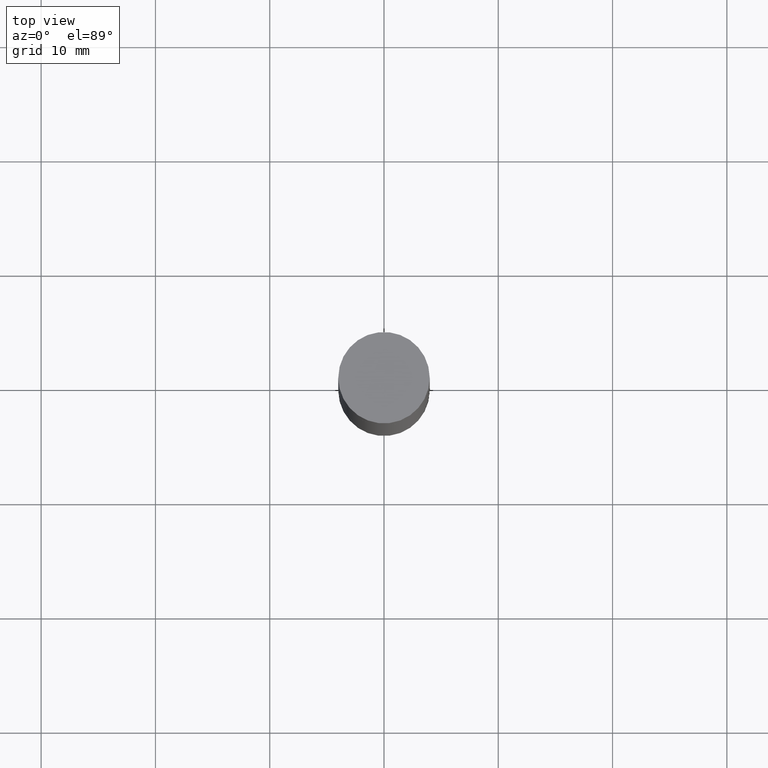
[diagram: clean part render]
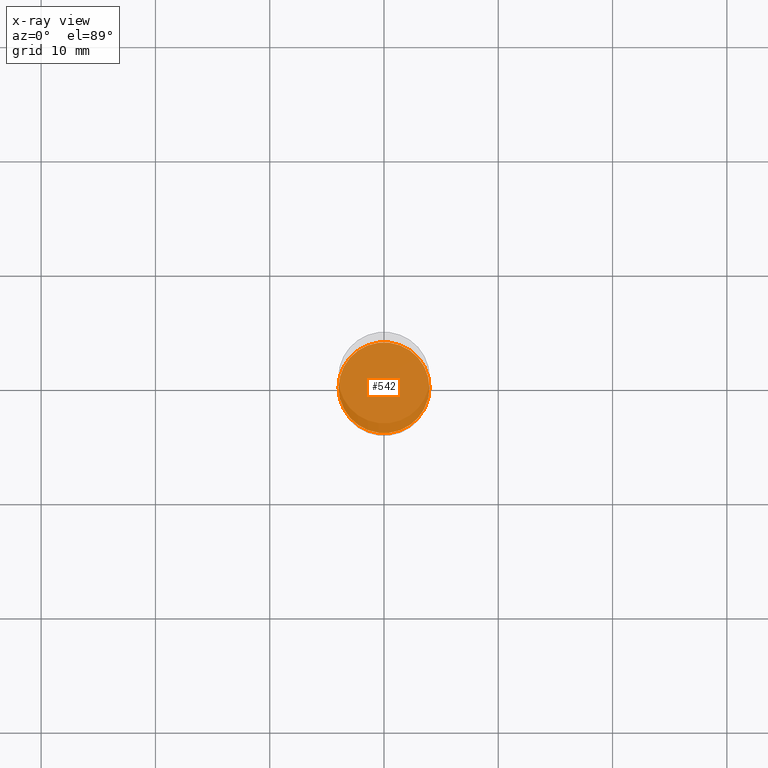
[diagram: x-ray — body ghosted, one internal face saturated and labeled with its STEP entity id]
A machine part, top view, then the same camera in x-ray: the body is ghosted and one INTERNAL B-rep face — a face not visible from any outside direction — is saturated and labeled: STEP entity #542.
In plain terms, the highlighted planar face has unit normal (-0, 0, 1).
Its self-contained STEP definition (entity closure, byte-faithful):
#34 = CARTESIAN_POINT ( 'NONE',  ( 4.910256815939136991E-29, -7.010545380263154077E-15, -2.007900000000000240 ) ) ;
#35 = PLANE ( 'NONE',  #350 ) ;
#47 = CARTESIAN_POINT ( 'NONE',  ( -0.1565000000000000002, -5.893247544450374291E-15, -2.007900000000000240 ) ) ;
#94 = AXIS2_PLACEMENT_3D ( 'NONE', #401, #620, #141 ) ;
#123 = EDGE_CURVE ( 'NONE', #592, #201, #156, .T. ) ;
#141 = DIRECTION ( 'NONE',  ( 1.000000000000000000, -6.982962677686267499E-15, 0.000000000000000000 ) ) ;
#156 = CIRCLE ( 'NONE', #94, 0.1565000000000000002 ) ;
#186 = DIRECTION ( 'NONE',  ( -2.445468806185136597E-29, 3.491481338843145583E-15, 1.000000000000000000 ) ) ;
#201 = VERTEX_POINT ( 'NONE', #674 ) ;
#232 = ORIENTED_EDGE ( 'NONE', *, *, #411, .F. ) ;
#254 = AXIS2_PLACEMENT_3D ( 'NONE', #34, #186, #485 ) ;
#262 = CIRCLE ( 'NONE', #254, 0.1565000000000000002 ) ;
#350 = AXIS2_PLACEMENT_3D ( 'NONE', #555, #614, #560 ) ;
#401 = CARTESIAN_POINT ( 'NONE',  ( 4.910256815939136991E-29, -7.010545380263154077E-15, -2.007900000000000240 ) ) ;
#411 = EDGE_CURVE ( 'NONE', #201, #592, #262, .T. ) ;
#480 = ORIENTED_EDGE ( 'NONE', *, *, #123, .F. ) ;
#485 = DIRECTION ( 'NONE',  ( 1.000000000000000000, -6.982962677686267499E-15, 0.000000000000000000 ) ) ;
#542 = ADVANCED_FACE ( 'NONE', ( #676 ), #35, .F. ) ;
#555 = CARTESIAN_POINT ( 'NONE',  ( 4.910256815939136430E-29, -7.010545380263152499E-15, -2.007900000000000240 ) ) ;
#560 = DIRECTION ( 'NONE',  ( 1.000000000000000000, -6.982962677686265922E-15, 4.876176775795935793E-29 ) ) ;
#592 = VERTEX_POINT ( 'NONE', #47 ) ;
#614 = DIRECTION ( 'NONE',  ( -2.438088387897960049E-29, 3.491481338843145188E-15, 1.000000000000000000 ) ) ;
#620 = DIRECTION ( 'NONE',  ( -2.445468806185136597E-29, 3.491481338843145583E-15, 1.000000000000000000 ) ) ;
#662 = EDGE_LOOP ( 'NONE', ( #232, #480 ) ) ;
#674 = CARTESIAN_POINT ( 'NONE',  ( 0.1565000000000000002, -8.103379039321054754E-15, -2.007900000000000240 ) ) ;
#676 = FACE_OUTER_BOUND ( 'NONE', #662, .T. ) ;